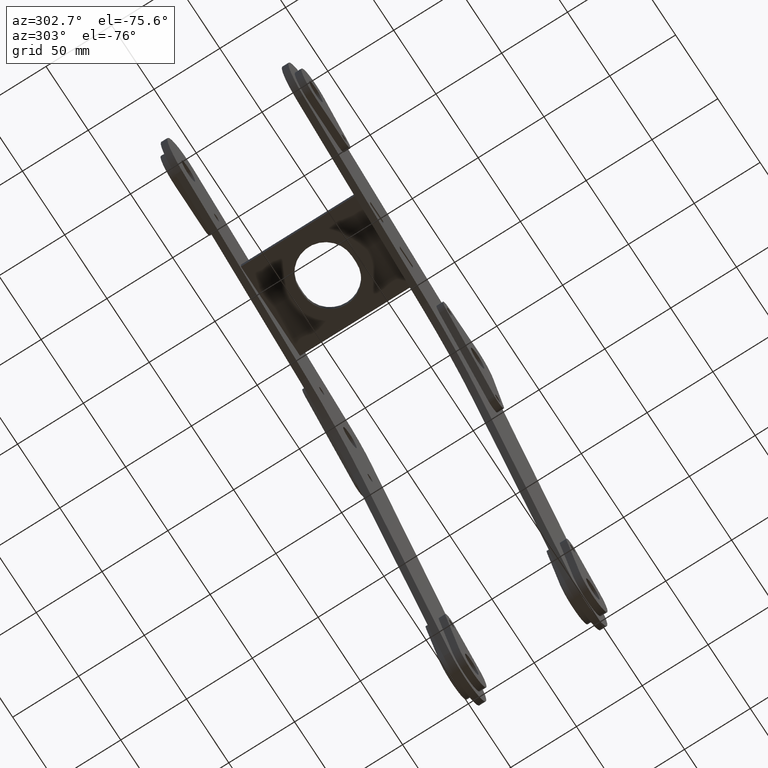
[diagram: clean part render]
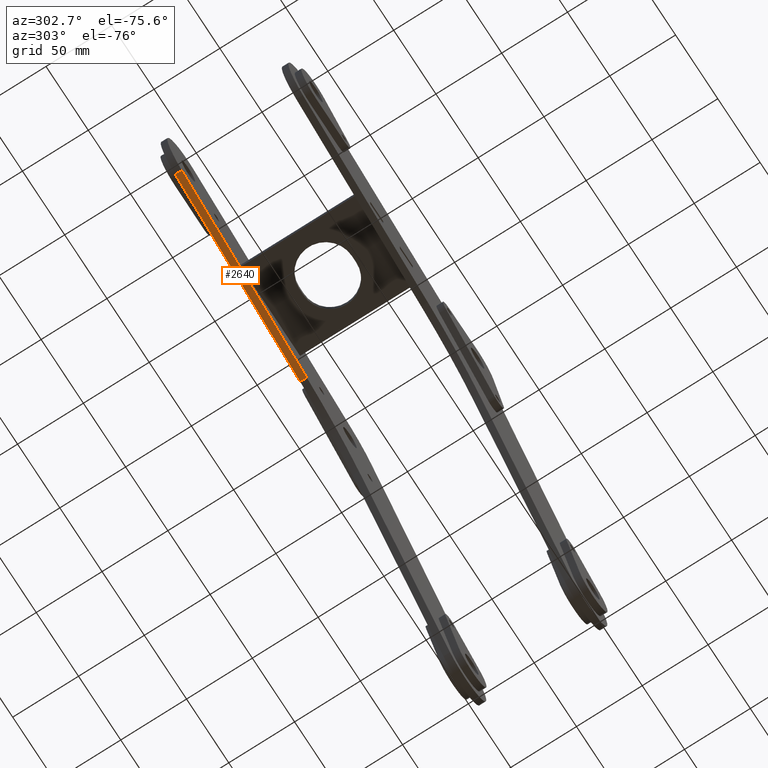
[diagram: same view with one face highlighted and labeled with its STEP entity id]
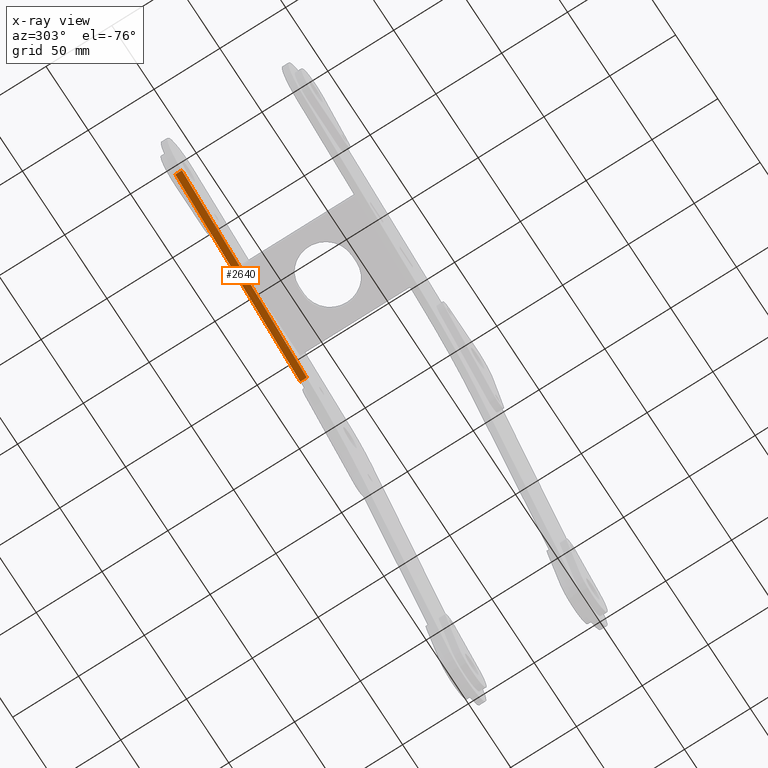
[diagram: x-ray of the same camera — body ghosted, the highlighted face saturated]
A machine part, auxiliary view. The second image highlights one B-rep face of the part: STEP entity #2640.
The next image is the same camera in x-ray: the body ghosted, the highlighted face saturated — about 0% of this face is hidden behind the body in this view.
In plain terms, the highlighted planar face has unit normal (-0.309, -0, -0.9511).
Its self-contained STEP definition (entity closure, byte-faithful):
#115 = AXIS2_PLACEMENT_3D ( 'NONE', #172, #1919, #1051 ) ;
#116 = VECTOR ( 'NONE', #3269, 1000.000000000000114 ) ;
#124 = CARTESIAN_POINT ( 'NONE',  ( -200.4363101609320950, -24.99619237890977530, 0.000000000000000000 ) ) ;
#172 = CARTESIAN_POINT ( 'NONE',  ( -200.4363101609320950, -24.99619237890977530, -5.000000000000000000 ) ) ;
#371 = VECTOR ( 'NONE', #3077, 1000.000000000000000 ) ;
#612 = CARTESIAN_POINT ( 'NONE',  ( -200.4363101609320950, -24.99619237890977530, -5.000000000000000000 ) ) ;
#647 = ORIENTED_EDGE ( 'NONE', *, *, #2661, .F. ) ;
#692 = FACE_OUTER_BOUND ( 'NONE', #2157, .T. ) ;
#755 = VECTOR ( 'NONE', #3023, 1000.000000000000000 ) ;
#880 = EDGE_CURVE ( 'NONE', #1694, #3449, #2383, .T. ) ;
#915 = CARTESIAN_POINT ( 'NONE',  ( -200.4363101609320950, -24.99619237890977530, 0.000000000000000000 ) ) ;
#1051 = DIRECTION ( 'NONE',  ( 0.9998476951563911586, -0.01745240643728373023, 0.000000000000000000 ) ) ;
#1207 = LINE ( 'NONE', #612, #3713 ) ;
#1223 = DIRECTION ( 'NONE',  ( 0.9998476951563911586, -0.01745240643728373023, 0.000000000000000000 ) ) ;
#1694 = VERTEX_POINT ( 'NONE', #124 ) ;
#1845 = LINE ( 'NONE', #2718, #755 ) ;
#1888 = CARTESIAN_POINT ( 'NONE',  ( -44.99312471194955521, -27.70946327357076555, -5.000000000000000000 ) ) ;
#1919 = DIRECTION ( 'NONE',  ( -0.01745240643728373370, -0.9998476951563912696, 0.000000000000000000 ) ) ;
#1940 = CARTESIAN_POINT ( 'NONE',  ( -200.4363101609320950, -24.99619237890977530, -5.000000000000000000 ) ) ;
#1952 = ORIENTED_EDGE ( 'NONE', *, *, #880, .F. ) ;
#2157 = EDGE_LOOP ( 'NONE', ( #1952, #647, #2166, #2723 ) ) ;
#2166 = ORIENTED_EDGE ( 'NONE', *, *, #2426, .T. ) ;
#2304 = CARTESIAN_POINT ( 'NONE',  ( -200.4363101609320950, -24.99619237890977530, -5.000000000000000000 ) ) ;
#2383 = LINE ( 'NONE', #915, #116 ) ;
#2426 = EDGE_CURVE ( 'NONE', #2764, #3100, #1207, .T. ) ;
#2640 = ADVANCED_FACE ( 'NONE', ( #692 ), #2826, .T. ) ;
#2661 = EDGE_CURVE ( 'NONE', #2764, #1694, #3349, .T. ) ;
#2718 = CARTESIAN_POINT ( 'NONE',  ( -44.99312471194955521, -27.70946327357076555, -5.000000000000000000 ) ) ;
#2723 = ORIENTED_EDGE ( 'NONE', *, *, #3517, .T. ) ;
#2764 = VERTEX_POINT ( 'NONE', #2304 ) ;
#2826 = PLANE ( 'NONE',  #115 ) ;
#3023 = DIRECTION ( 'NONE',  ( 0.000000000000000000, 0.000000000000000000, 1.000000000000000000 ) ) ;
#3077 = DIRECTION ( 'NONE',  ( 0.000000000000000000, 0.000000000000000000, 1.000000000000000000 ) ) ;
#3100 = VERTEX_POINT ( 'NONE', #1888 ) ;
#3269 = DIRECTION ( 'NONE',  ( 0.9998476951563911586, -0.01745240643728373023, 0.000000000000000000 ) ) ;
#3294 = CARTESIAN_POINT ( 'NONE',  ( -44.99312471194955521, -27.70946327357076555, 0.000000000000000000 ) ) ;
#3349 = LINE ( 'NONE', #1940, #371 ) ;
#3449 = VERTEX_POINT ( 'NONE', #3294 ) ;
#3517 = EDGE_CURVE ( 'NONE', #3100, #3449, #1845, .T. ) ;
#3713 = VECTOR ( 'NONE', #1223, 1000.000000000000114 ) ;